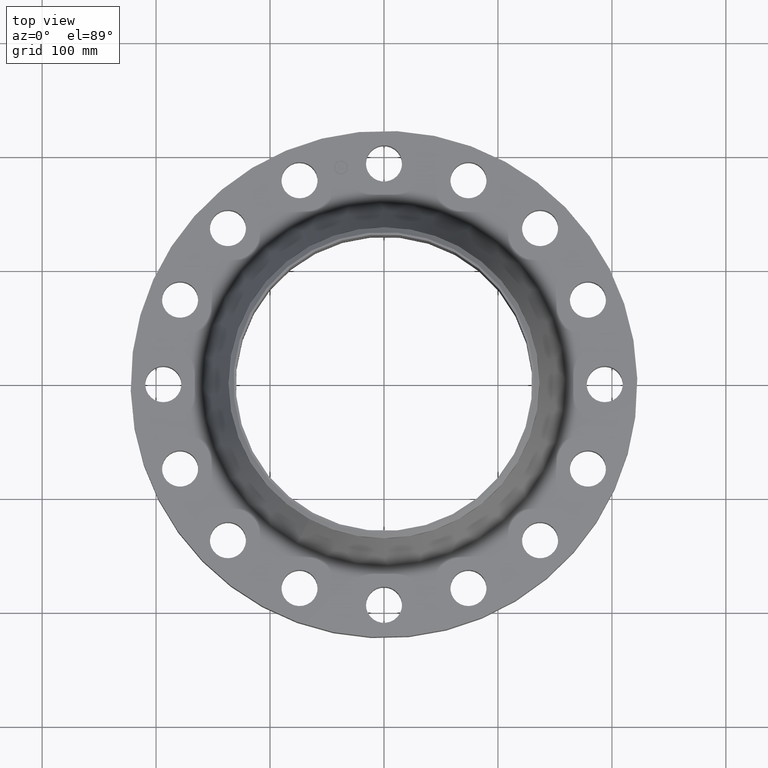
[diagram: clean part render]
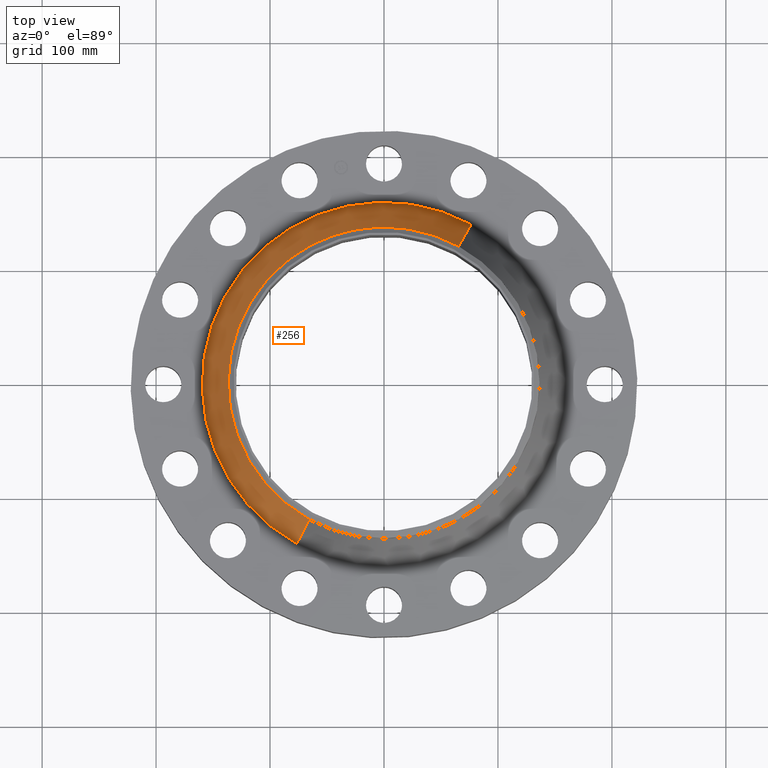
[diagram: same view with one face highlighted and labeled with its STEP entity id]
A machine part, top view. The second image highlights one B-rep face of the part: STEP entity #256.
In plain terms, the highlighted conical surface has half-angle 21.347 deg.
Its self-contained STEP definition (entity closure, byte-faithful):
#204=AXIS2_PLACEMENT_3D('Circle Axis2P3D',#202,#203,$) ;
#217=AXIS2_PLACEMENT_3D('Cone Axis2P3D',#214,#215,#216) ;
#247=AXIS2_PLACEMENT_3D('Circle Axis2P3D',#245,#246,$) ;
#175=CARTESIAN_POINT('Vertex',(3.01087520604,5.51137009626,2.19631841852)) ;
#182=CARTESIAN_POINT('Vertex',(-3.01087520604,-5.51137009626,2.19631841852)) ;
#202=CARTESIAN_POINT('Axis2P3D Location',(0.,0.,2.19631841852)) ;
#214=CARTESIAN_POINT('Axis2P3D Location',(0.,0.,4.51236722846)) ;
#219=CARTESIAN_POINT('Line Origine',(2.79389373802,5.11418818322,3.35434282349)) ;
#223=CARTESIAN_POINT('Vertex',(2.57691227001,4.71700627018,4.51236722846)) ;
#230=CARTESIAN_POINT('Vertex',(-2.57691227001,-4.71700627018,4.51236722846)) ;
#233=CARTESIAN_POINT('Line Origine',(-2.79389373802,-5.11418818322,3.35434282349)) ;
#245=CARTESIAN_POINT('Axis2P3D Location',(0.,0.,4.51236722846)) ;
#203=DIRECTION('Axis2P3D Direction',(0.,0.,-0.0393700787402)) ;
#215=DIRECTION('Axis2P3D Direction',(0.,0.,-0.0393700787402)) ;
#216=DIRECTION('Axis2P3D XDirection',(-0.0188750212049,-0.0345504945626,0.)) ;
#220=DIRECTION('Vector Direction',(0.00687075647419,0.0125768353649,-0.0366690471336)) ;
#234=DIRECTION('Vector Direction',(-0.00687075647419,-0.0125768353649,-0.0366690471336)) ;
#246=DIRECTION('Axis2P3D Direction',(0.,0.,-0.0393700787402)) ;
#221=VECTOR('Line Direction',#220,0.0393700787402) ;
#235=VECTOR('Line Direction',#234,0.0393700787402) ;
#251=ORIENTED_EDGE('',*,*,#206,.F.) ;
#252=ORIENTED_EDGE('',*,*,#237,.T.) ;
#253=ORIENTED_EDGE('',*,*,#249,.T.) ;
#254=ORIENTED_EDGE('',*,*,#225,.F.) ;
#256=ADVANCED_FACE('PartBody',(#255),#218,.T.) ;
#205=CIRCLE('generated circle',#204,6.28017275592) ;
#248=CIRCLE('generated circle',#247,5.37500000002) ;
#218=CONICAL_SURFACE('Cone',#217,5.37500000002,0.372573073565) ;
#206=EDGE_CURVE('',#183,#176,#205,.T.) ;
#225=EDGE_CURVE('',#176,#224,#222,.F.) ;
#237=EDGE_CURVE('',#183,#231,#236,.F.) ;
#249=EDGE_CURVE('',#231,#224,#248,.T.) ;
#250=EDGE_LOOP('',(#251,#252,#253,#254)) ;
#255=FACE_OUTER_BOUND('',#250,.T.) ;
#222=LINE('Line',#219,#221) ;
#236=LINE('Line',#233,#235) ;
#176=VERTEX_POINT('',#175) ;
#183=VERTEX_POINT('',#182) ;
#224=VERTEX_POINT('',#223) ;
#231=VERTEX_POINT('',#230) ;